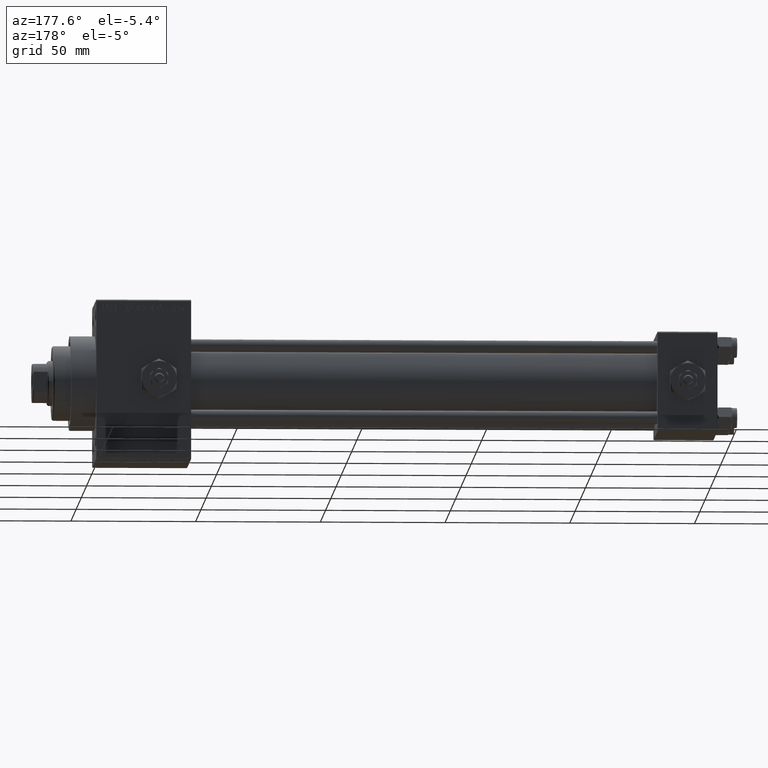
[diagram: clean part render]
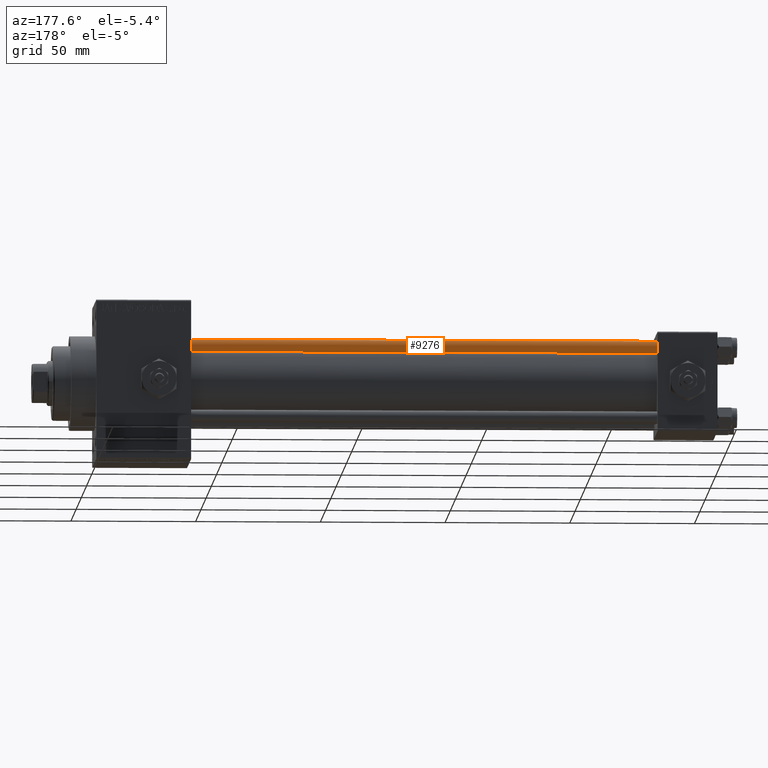
[diagram: same view with one face highlighted and labeled with its STEP entity id]
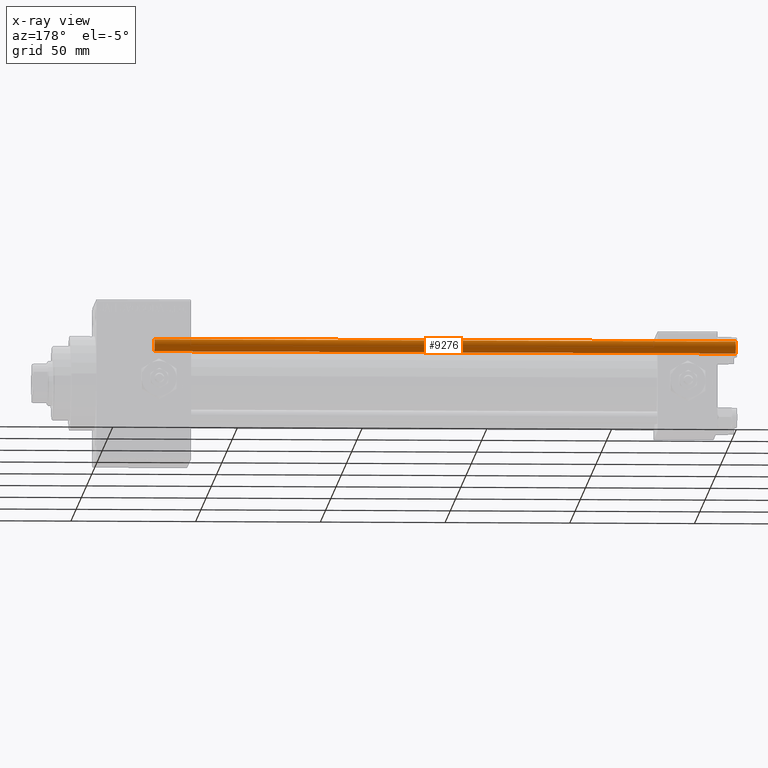
[diagram: x-ray of the same camera — body ghosted, the highlighted face saturated]
A machine part, auxiliary view. The second image highlights one B-rep face of the part: STEP entity #9276.
The next image is the same camera in x-ray: the body ghosted, the highlighted face saturated — about 0% of this face is hidden behind the body in this view.
In plain terms, the highlighted cylindrical surface (edge-blend (fillet) strip) has radius 2.5 mm, axis along (-1, -0, 0).
Its self-contained STEP definition (entity closure, byte-faithful):
#1094 = AXIS2_PLACEMENT_3D ( 'NONE', #32816, #41236, #44467 ) ;
#1150 = EDGE_CURVE ( 'NONE', #22150, #18014, #27346, .T. ) ;
#2189 = CARTESIAN_POINT ( 'NONE',  ( 0.000000000000000000, 0.000000000000000000, 0.5000000000000281997 ) ) ;
#5674 = ORIENTED_EDGE ( 'NONE', *, *, #9283, .T. ) ;
#9143 = DIRECTION ( 'NONE',  ( -0.000000000000000000, -0.000000000000000000, 1.000000000000000000 ) ) ;
#9276 = ADVANCED_FACE ( 'NONE', ( #41264 ), #44735, .T. ) ;
#9283 = EDGE_CURVE ( 'NONE', #18014, #40535, #26123, .T. ) ;
#10076 = ORIENTED_EDGE ( 'NONE', *, *, #15756, .T. ) ;
#10503 = DIRECTION ( 'NONE',  ( -0.000000000000000000, -0.000000000000000000, -1.000000000000000000 ) ) ;
#10745 = DIRECTION ( 'NONE',  ( -1.000000000000000000, 0.000000000000000000, 0.000000000000000000 ) ) ;
#13684 = CARTESIAN_POINT ( 'NONE',  ( -2.500000000000000000, 0.000000000000000000, 0.5000000000000281997 ) ) ;
#15029 = CARTESIAN_POINT ( 'NONE',  ( -2.500000000000000000, 0.000000000000000000, 233.5000000000000284 ) ) ;
#15578 = ORIENTED_EDGE ( 'NONE', *, *, #1150, .T. ) ;
#15756 = EDGE_CURVE ( 'NONE', #40535, #19793, #20504, .T. ) ;
#18014 = VERTEX_POINT ( 'NONE', #29489 ) ;
#19793 = VERTEX_POINT ( 'NONE', #13684 ) ;
#20504 = CIRCLE ( 'NONE', #34777, 2.500000000000000000 ) ;
#21993 = AXIS2_PLACEMENT_3D ( 'NONE', #29851, #25392, #10745 ) ;
#22150 = VERTEX_POINT ( 'NONE', #15029 ) ;
#24020 = DIRECTION ( 'NONE',  ( 1.000000000000000000, 0.000000000000000000, 0.000000000000000000 ) ) ;
#25290 = CARTESIAN_POINT ( 'NONE',  ( 2.500000000000000000, 3.061616997868383141E-16, 0.5000000000000281997 ) ) ;
#25392 = DIRECTION ( 'NONE',  ( -0.000000000000000000, -0.000000000000000000, -1.000000000000000000 ) ) ;
#26123 = LINE ( 'NONE', #33579, #30715 ) ;
#27346 = CIRCLE ( 'NONE', #1094, 2.500000000000000000 ) ;
#29489 = CARTESIAN_POINT ( 'NONE',  ( 2.500000000000000000, 3.061616997868383141E-16, 233.5000000000000284 ) ) ;
#29578 = EDGE_CURVE ( 'NONE', #22150, #19793, #29588, .T. ) ;
#29588 = LINE ( 'NONE', #34048, #46615 ) ;
#29851 = CARTESIAN_POINT ( 'NONE',  ( 0.000000000000000000, 0.000000000000000000, 234.0000000000000000 ) ) ;
#30321 = DIRECTION ( 'NONE',  ( -0.000000000000000000, -0.000000000000000000, -1.000000000000000000 ) ) ;
#30715 = VECTOR ( 'NONE', #10503, 1000.000000000000000 ) ;
#32816 = CARTESIAN_POINT ( 'NONE',  ( 0.000000000000000000, 0.000000000000000000, 233.5000000000000284 ) ) ;
#33579 = CARTESIAN_POINT ( 'NONE',  ( 2.500000000000000000, 3.061616997868383141E-16, 234.0000000000000000 ) ) ;
#34048 = CARTESIAN_POINT ( 'NONE',  ( -2.500000000000000000, 0.000000000000000000, 234.0000000000000000 ) ) ;
#34777 = AXIS2_PLACEMENT_3D ( 'NONE', #2189, #9143, #24020 ) ;
#40535 = VERTEX_POINT ( 'NONE', #25290 ) ;
#41236 = DIRECTION ( 'NONE',  ( 0.000000000000000000, 0.000000000000000000, -1.000000000000000000 ) ) ;
#41264 = FACE_OUTER_BOUND ( 'NONE', #45409, .T. ) ;
#41566 = ORIENTED_EDGE ( 'NONE', *, *, #29578, .F. ) ;
#44467 = DIRECTION ( 'NONE',  ( 1.000000000000000000, 0.000000000000000000, 0.000000000000000000 ) ) ;
#44735 = CYLINDRICAL_SURFACE ( 'NONE', #21993, 2.500000000000000000 ) ;
#45409 = EDGE_LOOP ( 'NONE', ( #15578, #5674, #10076, #41566 ) ) ;
#46615 = VECTOR ( 'NONE', #30321, 1000.000000000000000 ) ;